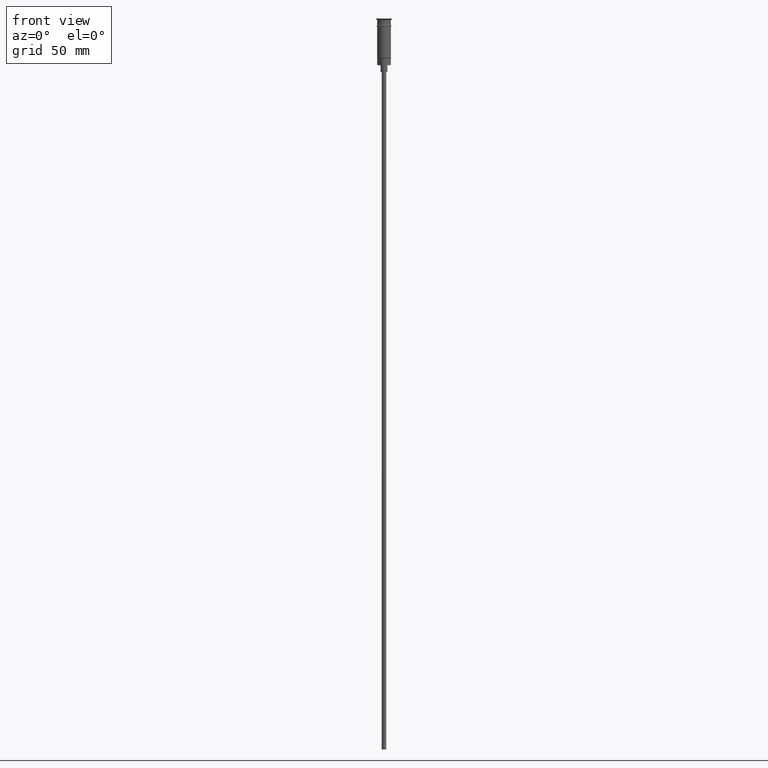
[diagram: clean part render]
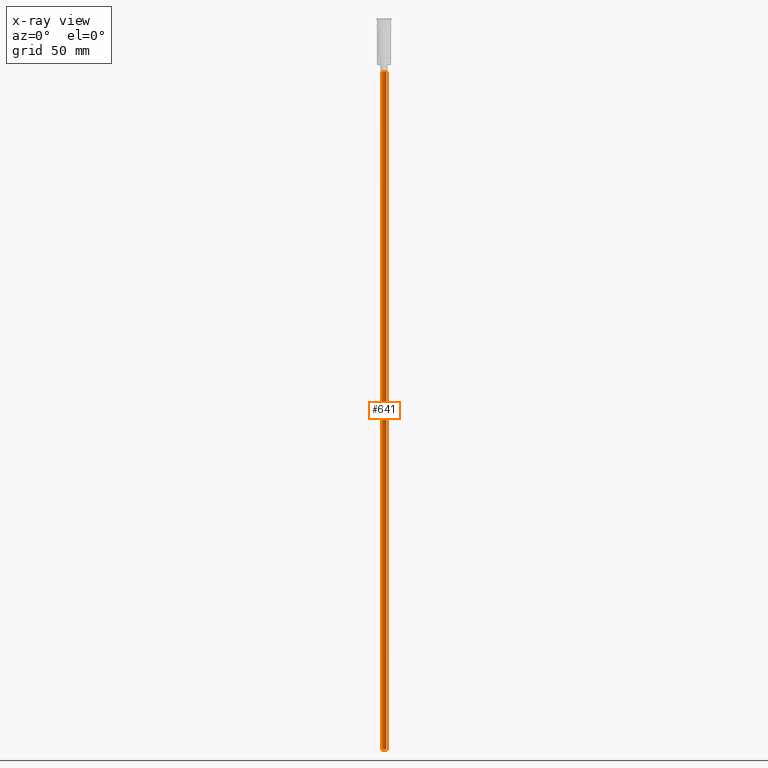
[diagram: x-ray — body ghosted, one internal face saturated and labeled with its STEP entity id]
A machine part, front view, then the same camera in x-ray: the body is ghosted and one INTERNAL B-rep face — a face not visible from any outside direction — is saturated and labeled: STEP entity #641.
In plain terms, the highlighted cylindrical surface (edge-blend (fillet) strip) has radius 1 mm, axis along (-0, -0, 1).
Its self-contained STEP definition (entity closure, byte-faithful):
#201 = DIRECTION ( 'NONE',  ( -1.000000000000000000, 0.000000000000000000, 0.000000000000000000 ) ) ;
#209 = ORIENTED_EDGE ( 'NONE', *, *, #1175, .F. ) ;
#231 = CARTESIAN_POINT ( 'NONE',  ( 0.000000000000000000, 0.000000000000000000, -320.5000000000000000 ) ) ;
#248 = AXIS2_PLACEMENT_3D ( 'NONE', #231, #1467, #361 ) ;
#252 = VERTEX_POINT ( 'NONE', #730 ) ;
#320 = EDGE_LOOP ( 'NONE', ( #649, #463, #1179, #209 ) ) ;
#328 = VECTOR ( 'NONE', #932, 1000.000000000000000 ) ;
#337 = CARTESIAN_POINT ( 'NONE',  ( 0.000000000000000000, 0.000000000000000000, -320.5000000000000000 ) ) ;
#351 = CARTESIAN_POINT ( 'NONE',  ( 0.9999999999999997780, 0.000000000000000000, -23.50000000000000000 ) ) ;
#361 = DIRECTION ( 'NONE',  ( 1.000000000000000000, 0.000000000000000000, 0.000000000000000000 ) ) ;
#463 = ORIENTED_EDGE ( 'NONE', *, *, #874, .T. ) ;
#513 = VERTEX_POINT ( 'NONE', #1582 ) ;
#517 = CYLINDRICAL_SURFACE ( 'NONE', #248, 0.9999999999999997780 ) ;
#544 = CARTESIAN_POINT ( 'NONE',  ( 0.9999999999999997780, 0.000000000000000000, -320.5000000000000000 ) ) ;
#552 = AXIS2_PLACEMENT_3D ( 'NONE', #337, #1310, #201 ) ;
#562 = LINE ( 'NONE', #1058, #328 ) ;
#608 = CARTESIAN_POINT ( 'NONE',  ( 0.000000000000000000, 0.000000000000000000, -23.50000000000000000 ) ) ;
#641 = ADVANCED_FACE ( 'NONE', ( #1138 ), #517, .T. ) ;
#649 = ORIENTED_EDGE ( 'NONE', *, *, #953, .F. ) ;
#710 = CIRCLE ( 'NONE', #1516, 0.9999999999999997780 ) ;
#730 = CARTESIAN_POINT ( 'NONE',  ( -0.9999999999999997780, 1.224646799147352961E-16, -23.50000000000000000 ) ) ;
#785 = DIRECTION ( 'NONE',  ( -0.000000000000000000, -0.000000000000000000, 1.000000000000000000 ) ) ;
#847 = DIRECTION ( 'NONE',  ( -1.000000000000000000, 0.000000000000000000, 0.000000000000000000 ) ) ;
#874 = EDGE_CURVE ( 'NONE', #1421, #252, #562, .T. ) ;
#913 = VECTOR ( 'NONE', #785, 1000.000000000000000 ) ;
#932 = DIRECTION ( 'NONE',  ( -0.000000000000000000, -0.000000000000000000, 1.000000000000000000 ) ) ;
#953 = EDGE_CURVE ( 'NONE', #1421, #513, #1464, .T. ) ;
#980 = DIRECTION ( 'NONE',  ( 0.000000000000000000, 0.000000000000000000, -1.000000000000000000 ) ) ;
#1058 = CARTESIAN_POINT ( 'NONE',  ( -0.9999999999999997780, 1.224646799147352961E-16, -320.5000000000000000 ) ) ;
#1059 = VERTEX_POINT ( 'NONE', #351 ) ;
#1095 = EDGE_CURVE ( 'NONE', #252, #1059, #710, .T. ) ;
#1138 = FACE_OUTER_BOUND ( 'NONE', #320, .T. ) ;
#1143 = LINE ( 'NONE', #544, #913 ) ;
#1175 = EDGE_CURVE ( 'NONE', #513, #1059, #1143, .T. ) ;
#1179 = ORIENTED_EDGE ( 'NONE', *, *, #1095, .T. ) ;
#1250 = CARTESIAN_POINT ( 'NONE',  ( -0.9999999999999997780, 1.224646799147352961E-16, -320.5000000000000000 ) ) ;
#1310 = DIRECTION ( 'NONE',  ( 0.000000000000000000, 0.000000000000000000, -1.000000000000000000 ) ) ;
#1421 = VERTEX_POINT ( 'NONE', #1250 ) ;
#1464 = CIRCLE ( 'NONE', #552, 0.9999999999999997780 ) ;
#1467 = DIRECTION ( 'NONE',  ( -0.000000000000000000, -0.000000000000000000, 1.000000000000000000 ) ) ;
#1516 = AXIS2_PLACEMENT_3D ( 'NONE', #608, #980, #847 ) ;
#1582 = CARTESIAN_POINT ( 'NONE',  ( 0.9999999999999997780, 0.000000000000000000, -320.5000000000000000 ) ) ;